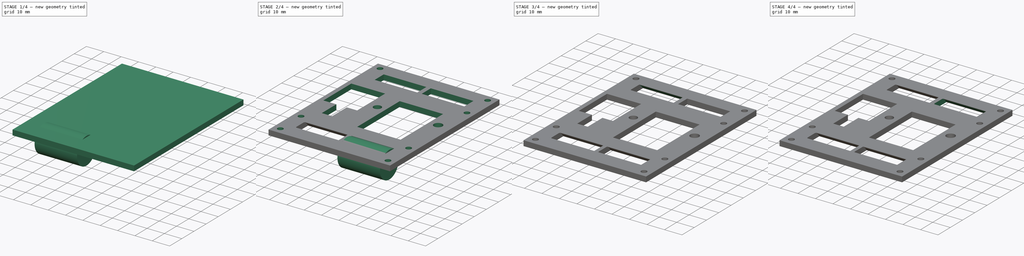
[diagram: build sequence overview — one tinted view per stage of 4, left to right]
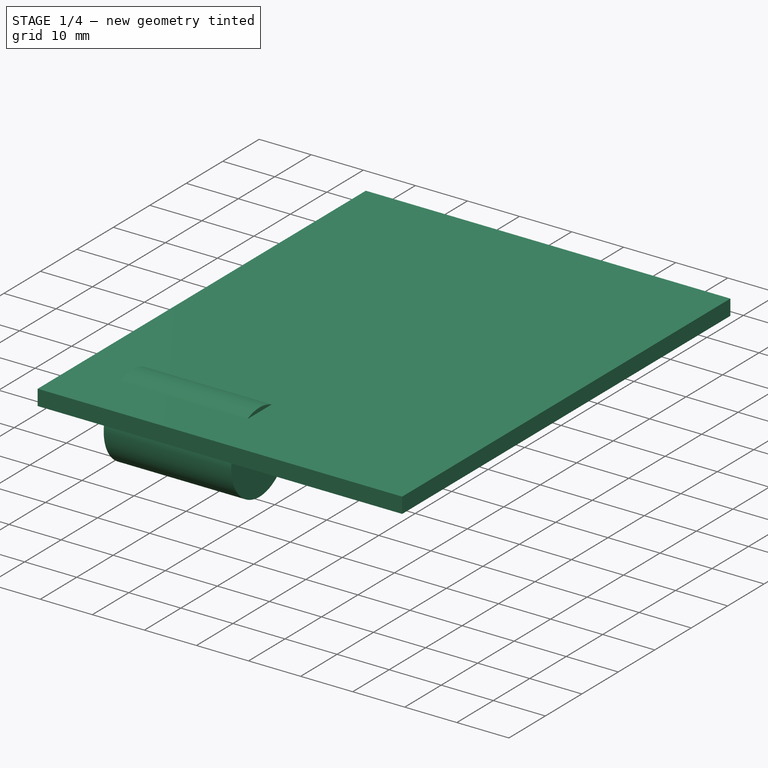
[diagram: stage 1 of 4 — iso view after this stage's code; geometry added in this stage tinted green]
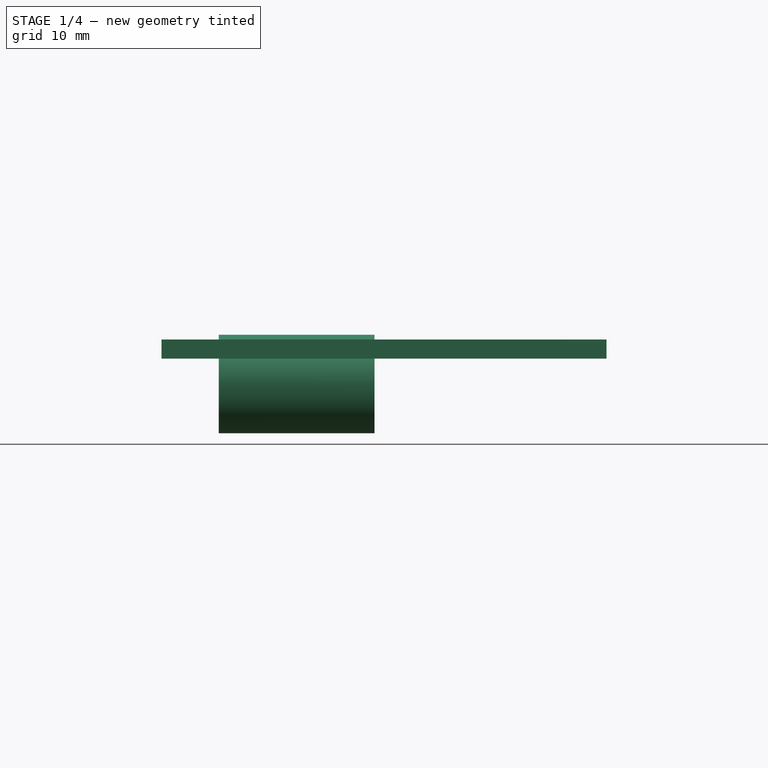
[diagram: stage 1 of 4 — front view after this stage's code; geometry added in this stage tinted green]
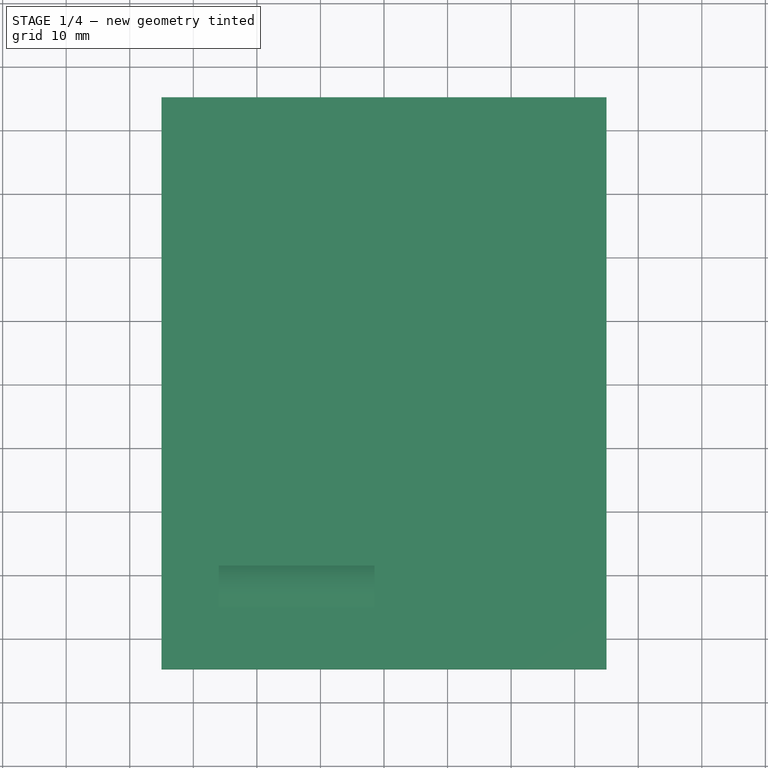
[diagram: stage 1 of 4 — top view after this stage's code; geometry added in this stage tinted green]
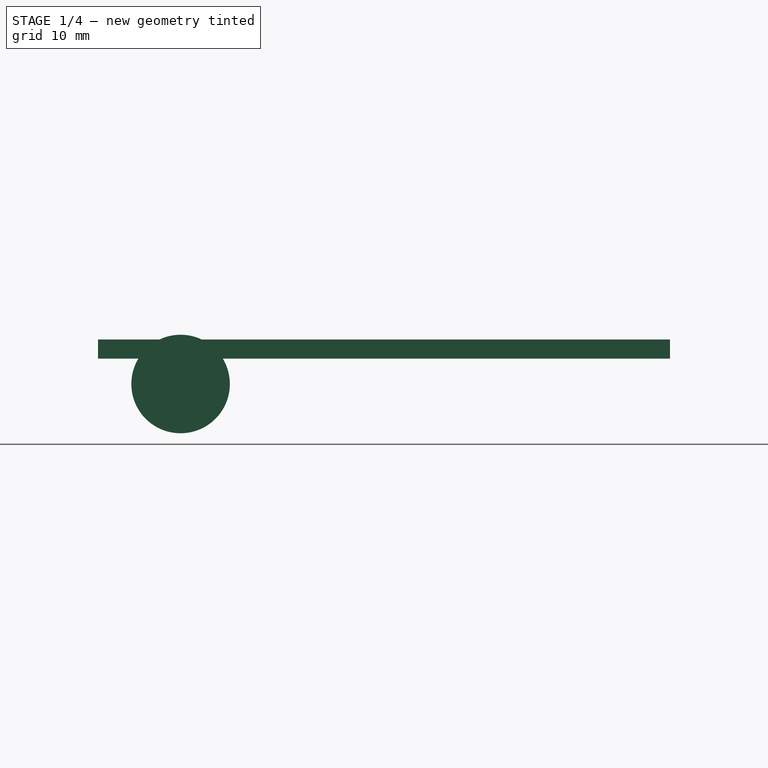
[diagram: stage 1 of 4 — right view after this stage's code; geometry added in this stage tinted green]
FCSTD DOCUMENT  (FreeCAD 0.16R4945 (Git))
Label: carriage-up
License: All rights reserved
LicenseURL: http://es.wikipedia.org/wiki/Todos_los_derechos_reservados
objects: Part::Cylinder×4, Part::Cut×4, Part::Feature×3, Sketcher::SketchObject×2, App::DocumentObjectGroup×1, PartDesign::Pad×1, PartDesign::Pocket×1
note: 17 computed .brp shape members not serialized (recipe doc carries the construction recipe); baked Part::Feature solids carry a one-line shape summary decoded from their .brp

FEATURE [Part::Feature] Part__Feature001  label="smooth-bar-8x330"
  shape: bbox 330 x 8 x 8 mm, 4 faces (baked)
FEATURE [Part::Feature] Part__Feature002  label="smooth-bar-8x331"
  Placement = pos=(0,65,0) rot=(0,0,1;0rad)
  shape: bbox 330 x 8 x 8 mm, 4 faces (baked)
FEATURE [Sketcher::SketchObject] Sketch
  sketch-geometry (4):
    g0: LineSegment StartX=-35 StartY=45 StartZ=0 EndX=35 EndY=45 EndZ=0
    g1: LineSegment StartX=35 StartY=45 StartZ=0 EndX=35 EndY=-45 EndZ=0
    g2: LineSegment StartX=35 StartY=-45 StartZ=0 EndX=-35 EndY=-45 EndZ=0
    g3: LineSegment StartX=-35 StartY=-45 StartZ=0 EndX=-35 EndY=45 EndZ=0
  constraints (11):
    c: Coincident(g0,g1)
    c: Coincident(g1,g2)
    c: Coincident(g2,g3)
    c: Coincident(g3,g0)
    c: Horizontal(g0)
    c: Horizontal(g2)
    c: Vertical(g1)
    c: Vertical(g3)
    c: Symmetric(g0,g1,g-1)
    c: DistanceX(g0) = 70
    c: DistanceY(g1) = -90
FEATURE [App::DocumentObjectGroup] Grupo  label="rodamientos"
FEATURE [PartDesign::Pad] Pad
  Length = 3
  Length2 = 100
  Sketch = -> Sketch
  Type = 0
FEATURE [Part::Cylinder] Cylinder  label="Cilindro"
  Angle = 360
  Height = 24.5
  Placement = pos=(-26,-32,-4) rot=(0,1,0;1.5708rad)
  Radius = 7.75
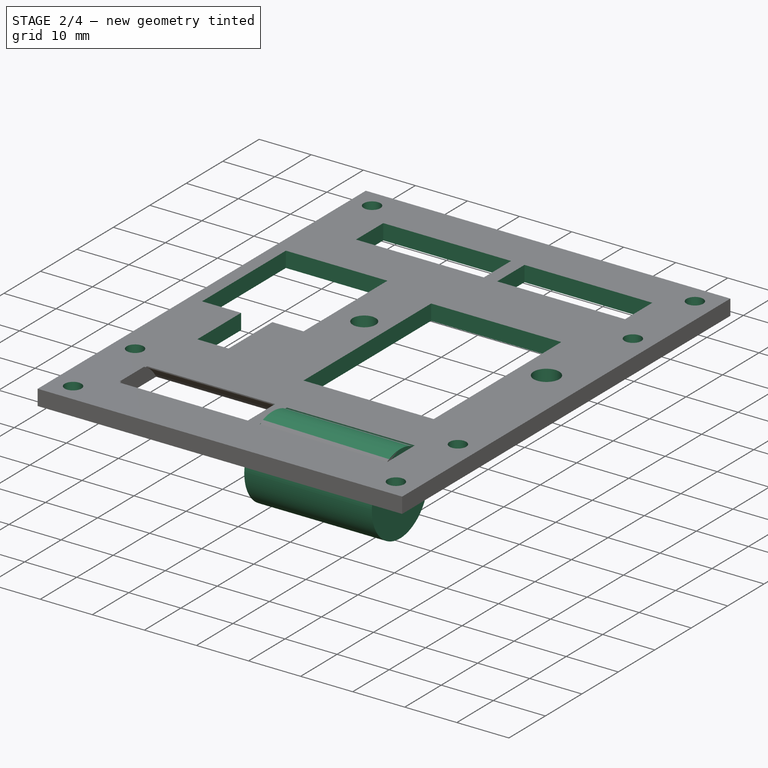
[diagram: stage 2 of 4 — iso view after this stage's code; geometry added in this stage tinted green]
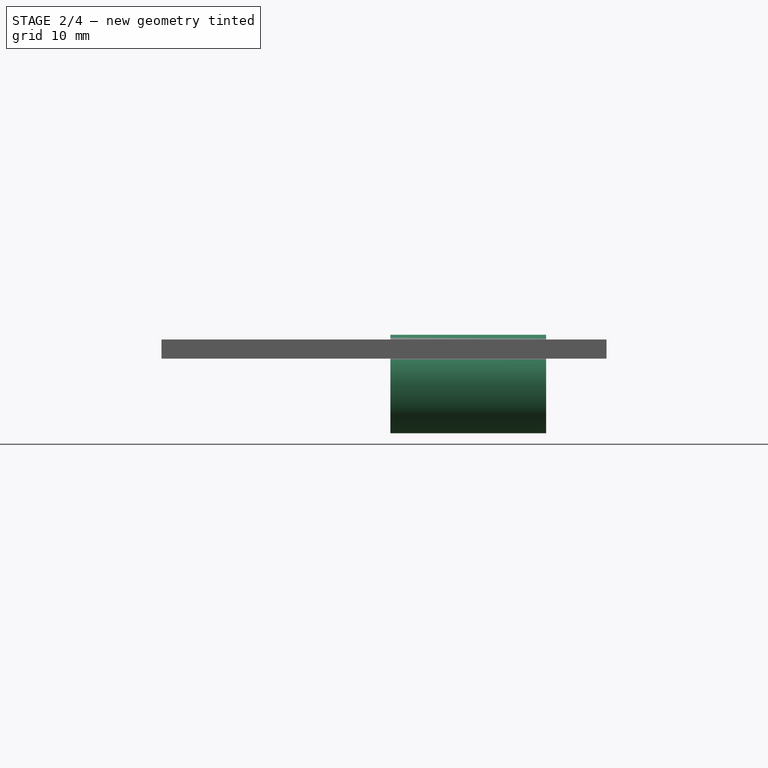
[diagram: stage 2 of 4 — front view after this stage's code; geometry added in this stage tinted green]
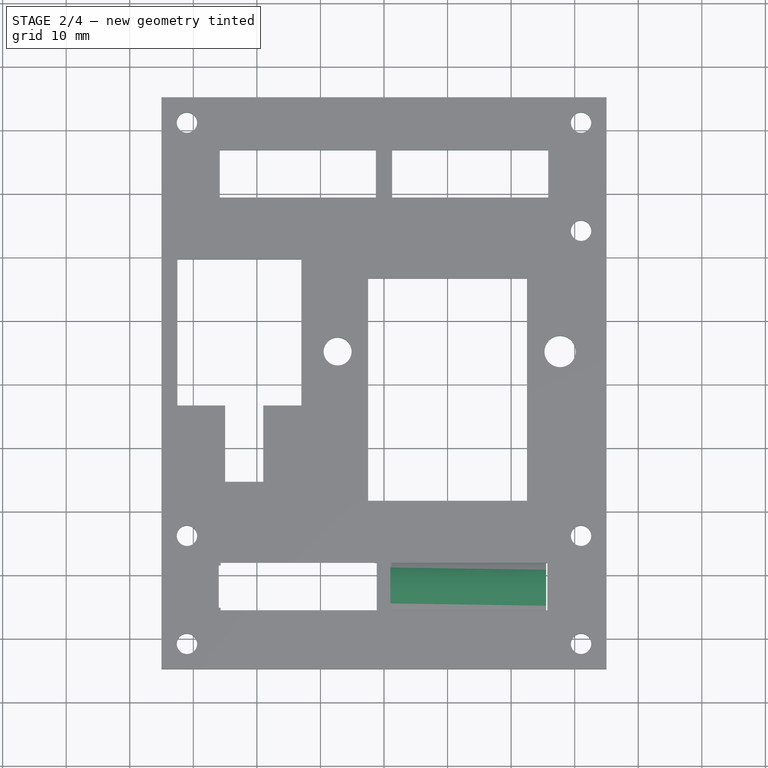
[diagram: stage 2 of 4 — top view after this stage's code; geometry added in this stage tinted green]
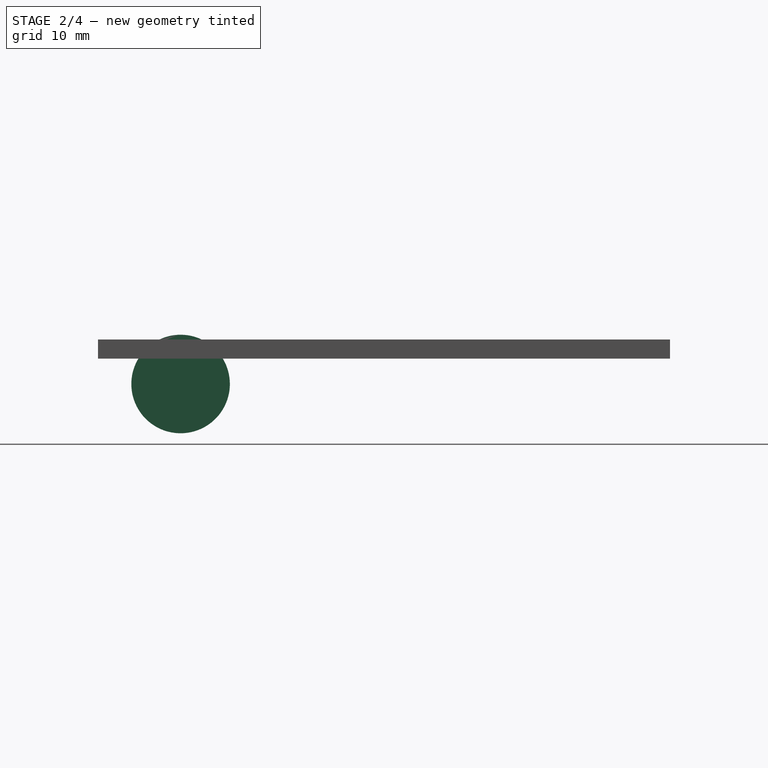
[diagram: stage 2 of 4 — right view after this stage's code; geometry added in this stage tinted green]
FEATURE [Sketcher::SketchObject] Sketch001
  Placement = pos=(0,0,3) rot=(0,0,1;0rad)
  Support = -> Pad [Face6]
  sketch-geometry (37):
    g0: LineSegment StartX=-32.5 StartY=19.5 StartZ=0 EndX=-13 EndY=19.5 EndZ=0
    g1: LineSegment StartX=-13 StartY=19.5 StartZ=0 EndX=-13 EndY=-3.5 EndZ=0
    g2: LineSegment StartX=-13 StartY=-3.5 StartZ=0 EndX=-19 EndY=-3.5 EndZ=0
    g3: LineSegment StartX=-19 StartY=-3.5 StartZ=0 EndX=-19 EndY=-15.5 EndZ=0
    g4: LineSegment StartX=-19 StartY=-15.5 StartZ=0 EndX=-25 EndY=-15.5 EndZ=0
    g5: LineSegment StartX=-25 StartY=-15.5 StartZ=0 EndX=-25 EndY=-3.5 EndZ=0
    g6: LineSegment StartX=-25 StartY=-3.5 StartZ=0 EndX=-32.5 EndY=-3.5 EndZ=0
    g7: LineSegment StartX=-32.5 StartY=-3.5 StartZ=0 EndX=-32.5 EndY=19.5 EndZ=0
    g8: Circle CenterX=-7.3 CenterY=5 CenterZ=0 NormalX=0 NormalY=0 NormalZ=1 Radius=2.2
    g9: Circle CenterX=27.7 CenterY=5 CenterZ=0 NormalX=0 NormalY=0 NormalZ=1 Radius=2.46197
    g10: LineSegment StartX=-2.5 StartY=16.5 StartZ=0 EndX=22.5 EndY=16.5 EndZ=0
    g11: LineSegment StartX=22.5 StartY=16.5 StartZ=0 EndX=22.5 EndY=-18.5 EndZ=0
    g12: LineSegment StartX=22.5 StartY=-18.5 StartZ=0 EndX=-2.5 EndY=-18.5 EndZ=0
    g13: LineSegment StartX=-2.5 StartY=-18.5 StartZ=0 EndX=-2.5 EndY=16.5 EndZ=0
    g14: LineSegment StartX=-25.8394 StartY=36.6871 StartZ=0 EndX=-1.28258 EndY=36.6871 EndZ=0
    g15: LineSegment StartX=-1.28258 StartY=36.6871 StartZ=0 EndX=-1.28258 EndY=29.2169 EndZ=0
    g16: LineSegment StartX=-1.28258 StartY=29.2169 StartZ=0 EndX=-25.8394 EndY=29.2169 EndZ=0
    g17: LineSegment StartX=-25.8394 StartY=29.2169 StartZ=0 EndX=-25.8394 EndY=36.6871 EndZ=0
    g18: LineSegment StartX=1.28258 StartY=36.6871 StartZ=0 EndX=25.8394 EndY=36.6871 EndZ=0
    g19: LineSegment StartX=25.8394 StartY=36.6871 StartZ=0 EndX=25.8394 EndY=29.2169 EndZ=0
    g20: LineSegment StartX=25.8394 StartY=29.2169 StartZ=0 EndX=1.28258 EndY=29.2169 EndZ=0
    g21: LineSegment StartX=1.28258 StartY=29.2169 StartZ=0 EndX=1.28258 EndY=36.6871 EndZ=0
    g22: LineSegment StartX=-25.6951 StartY=-28.2572 StartZ=0 EndX=-1.1383 EndY=-28.2572 EndZ=0
    g23: LineSegment StartX=-1.1383 StartY=-28.2572 StartZ=0 EndX=-1.1383 EndY=-35.7275 EndZ=0
    g24: LineSegment StartX=-1.1383 StartY=-35.7275 StartZ=0 EndX=-25.6951 EndY=-35.7275 EndZ=0
    g25: LineSegment StartX=-25.6951 StartY=-35.7275 StartZ=0 EndX=-25.6951 EndY=-28.2572 EndZ=0
    g26: LineSegment StartX=1.1383 StartY=-28.2572 StartZ=0 EndX=25.6951 EndY=-28.2572 EndZ=0
    g27: LineSegment StartX=25.6951 StartY=-28.2572 StartZ=0 EndX=25.6951 EndY=-35.7275 EndZ=0
    g28: LineSegment StartX=25.6951 StartY=-35.7275 StartZ=0 EndX=1.1383 EndY=-35.7275 EndZ=0
    g29: LineSegment StartX=1.1383 StartY=-35.7275 StartZ=0 EndX=1.1383 EndY=-28.2572 EndZ=0
    g30: Circle CenterX=-31 CenterY=41 CenterZ=0 NormalX=0 NormalY=0 NormalZ=1 Radius=1.6
    g31: Circle CenterX=31 CenterY=41 CenterZ=0 NormalX=0 NormalY=0 NormalZ=1 Radius=1.6
    g32: Circle CenterX=31 CenterY=24 CenterZ=0 NormalX=0 NormalY=0 NormalZ=1 Radius=1.6
    g33: Circle CenterX=-31 CenterY=-24 CenterZ=0 NormalX=0 NormalY=0 NormalZ=1 Radius=1.6
    g34: Circle CenterX=-31 CenterY=-41 CenterZ=0 NormalX=0 NormalY=0 NormalZ=1 Radius=1.6
    g35: Circle CenterX=31 CenterY=-24 CenterZ=0 NormalX=0 NormalY=0 NormalZ=1 Radius=1.6
    g36: Circle CenterX=31 CenterY=-41 CenterZ=0 NormalX=0 NormalY=0 NormalZ=1 Radius=1.6
  constraints (90):
    c: Horizontal(g0)
    c: Coincident(g0,g1)
    c: Vertical(g1)
    c: Coincident(g1,g2)
    c: Coincident(g2,g3)
    c: Vertical(g3)
    c: Coincident(g3,g4)
    c: Horizontal(g4)
    c: Coincident(g4,g5)
    c: Vertical(g5)
    c: Coincident(g5,g6)
    c: Coincident(g6,g7)
    c: Coincident(g7,g0)
    c: Horizontal(g2)
    c: DistanceX(g2) = -6
    c: DistanceY(g3) = -12
    c: DistanceY(g1) = -23
    c: Equal(g3,g5)
    c: Horizontal(g6)
    c: DistanceX(g4) = -6
    c: Radius(g8) = 2.2
    c: Distance(g8,g9) = 35
    c: Coincident(g10,g11)
    c: Coincident(g11,g12)
    c: Coincident(g12,g13)
    c: Coincident(g13,g10)
    c: Horizontal(g10)
    c: Horizontal(g12)
    c: Vertical(g11)
    c: Vertical(g13)
    c: DistanceX(g10) = 25
    c: DistanceY(g11) = -35
    c: DistanceX(g-2,g8) = -7.3
    c: DistanceY(g-1,g9) = 5
    c: DistanceY(g-1,g8) = 5
    c: DistanceY(g-1,g12) = -18.5
    c: DistanceX(g-2,g10) = -2.5
    c: Coincident(g14,g15)
    c: Coincident(g15,g16)
    c: Coincident(g16,g17)
    c: Coincident(g17,g14)
    c: Horizontal(g14)
    c: Horizontal(g16)
    c: Vertical(g15)
    c: Vertical(g17)
    c: Coincident(g18,g19)
    c: Coincident(g19,g20)
    c: Coincident(g20,g21)
    c: Coincident(g21,g18)
    c: Horizontal(g18)
    c: Horizontal(g20)
    c: Vertical(g19)
    c: Vertical(g21)
    c: Coincident(g22,g23)
    c: Coincident(g23,g24)
    c: Coincident(g24,g25)
    c: Coincident(g25,g22)
    c: Horizontal(g22)
    c: Horizontal(g24)
    c: Vertical(g23)
    c: Vertical(g25)
    c: Coincident(g26,g27)
    c: Coincident(g27,g28)
    c: Coincident(g28,g29)
    c: Coincident(g29,g26)
    c: Horizontal(g26)
    c: Horizontal(g28)
    c: Vertical(g27)
    c: Vertical(g29)
    c: Radius(g30) = 1.6
    c: Equal(g32,g31)
    c: Equal(g31,g33)
    c: Equal(g33,g34)
    c: Equal(g34,g36)
    c: Equal(g36,g35)
    c: Symmetric(g34,g31,g-1)
    c: Symmetric(g30,g36,g-1)
    c: Symmetric(g32,g33,g-1)
    c: DistanceY(g-1,g3) = -15.5
    c: Equal(g14,g18)
    c: Equal(g18,g22)
    c: Equal(g22,g26)
    c: Equal(g29,g19)
    c: Equal(g19,g15)
    c: Equal(g15,g23)
    c: Symmetric(g14,g18,g-2)
    c: Symmetric(g22,g26,g-2)
    c: Distance(g34,g36) = 62
    c: Distance(g33,g34) = 17
    c: Distance(g35,g32) = 48
FEATURE [PartDesign::Pocket] Pocket
  Length = 5
  Sketch = -> Sketch001
  Type = 1
FEATURE [Part::Cylinder] Cylinder001  label="Cilindro001"
  Angle = 360
  Height = 24.5
  Placement = pos=(1,-32,-4) rot=(0,1,0;1.5708rad)
  Radius = 7.75
FEATURE [Part::Cut] Cut
  Base = -> Pocket
  Tool = -> Cylinder
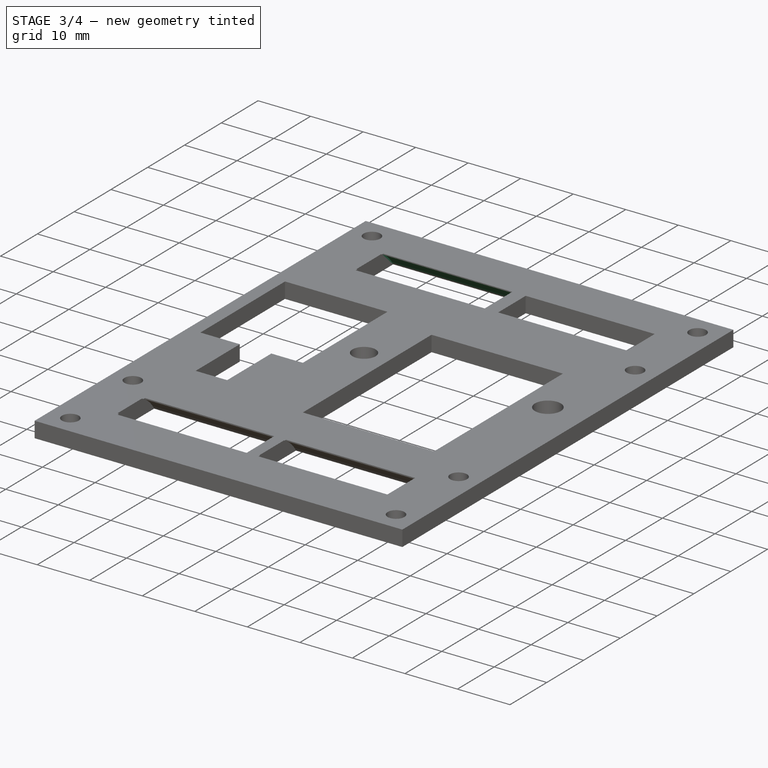
[diagram: stage 3 of 4 — iso view after this stage's code; geometry added in this stage tinted green]
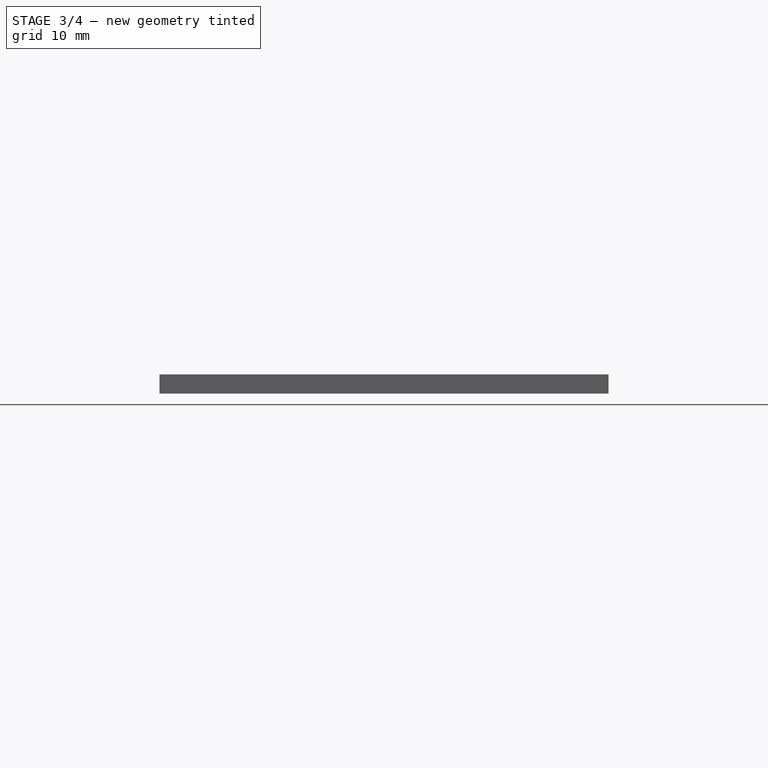
[diagram: stage 3 of 4 — front view after this stage's code; geometry added in this stage tinted green]
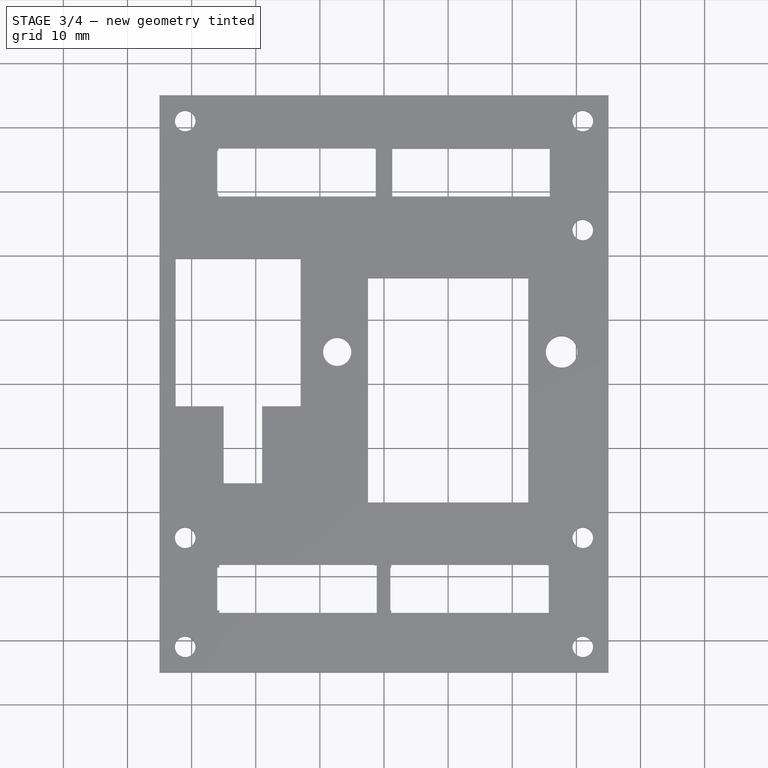
[diagram: stage 3 of 4 — top view after this stage's code; geometry added in this stage tinted green]
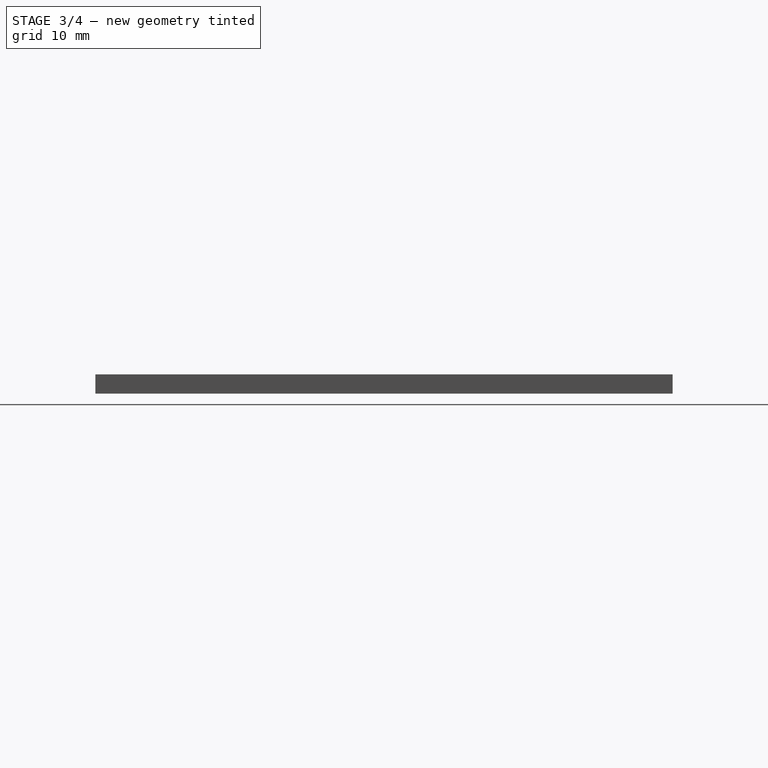
[diagram: stage 3 of 4 — right view after this stage's code; geometry added in this stage tinted green]
FEATURE [Part::Cylinder] Cylinder002  label="Cilindro002"
  Angle = 360
  Height = 24.5
  Placement = pos=(-26,33,-4) rot=(0,1,0;1.5708rad)
  Radius = 7.75
FEATURE [Part::Cut] Cut001
  Base = -> Cut
  Tool = -> Cylinder001
FEATURE [Part::Cut] Cut002
  Base = -> Cut001
  Tool = -> Cylinder002
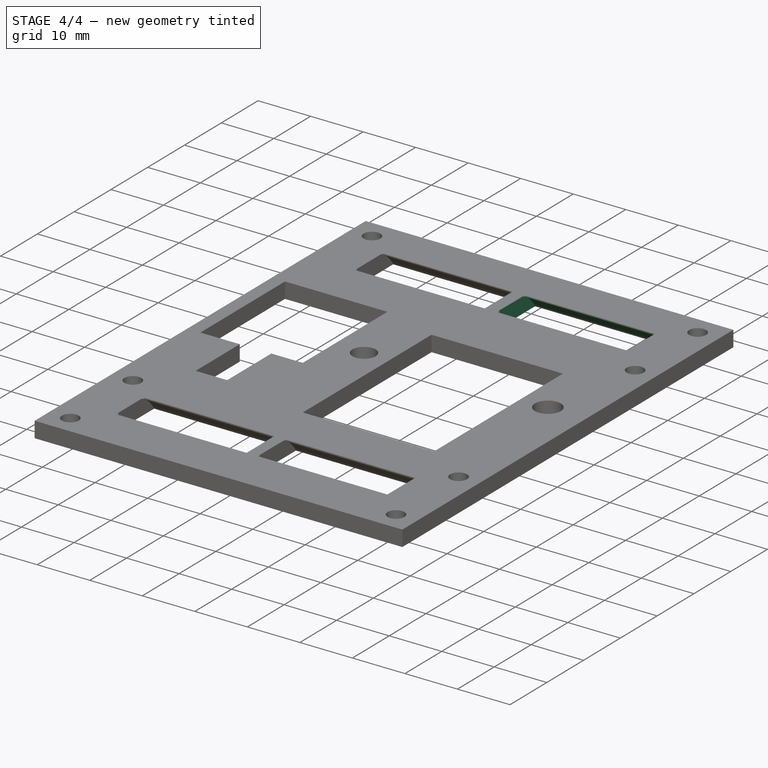
[diagram: stage 4 of 4 — iso view after this stage's code; geometry added in this stage tinted green]
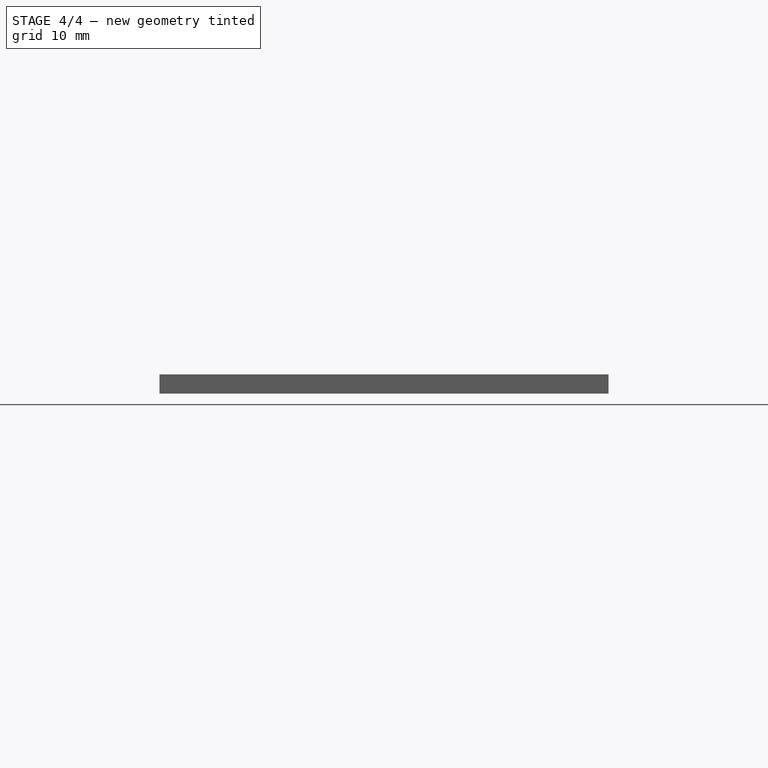
[diagram: stage 4 of 4 — front view after this stage's code; geometry added in this stage tinted green]
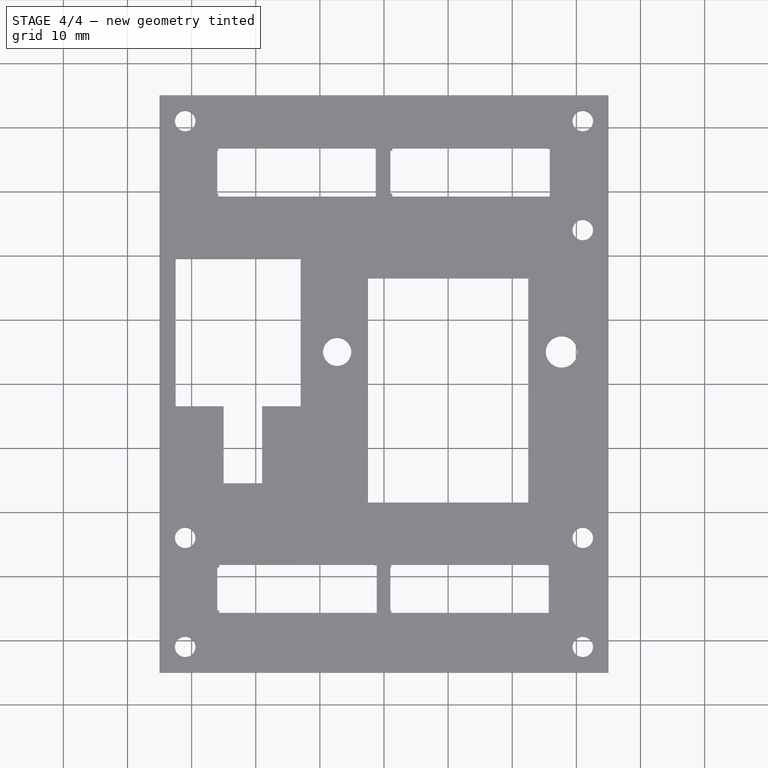
[diagram: stage 4 of 4 — top view after this stage's code; geometry added in this stage tinted green]
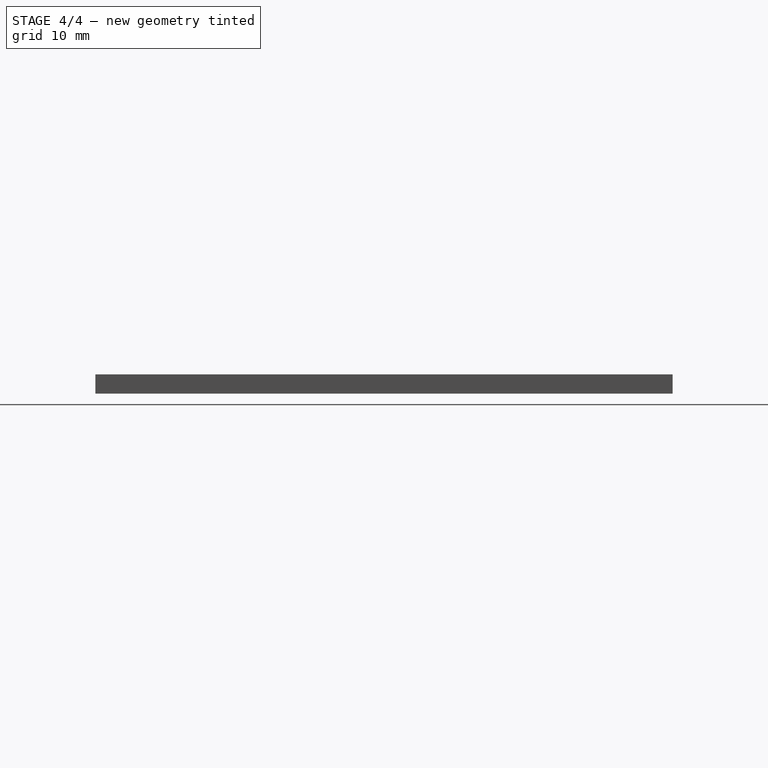
[diagram: stage 4 of 4 — right view after this stage's code; geometry added in this stage tinted green]
FEATURE [Part::Cylinder] Cylinder003  label="Cilindro003"
  Angle = 360
  Height = 24.5
  Placement = pos=(1,33,-4) rot=(0,1,0;1.5708rad)
  Radius = 7.75
FEATURE [Part::Cut] Cut003
  Base = -> Cut002
  Tool = -> Cylinder003
FEATURE [Part::Feature] Cut003001  label="Carriage-up-final"
  shape: bbox 70 x 90 x 3 mm, 67 faces (baked)
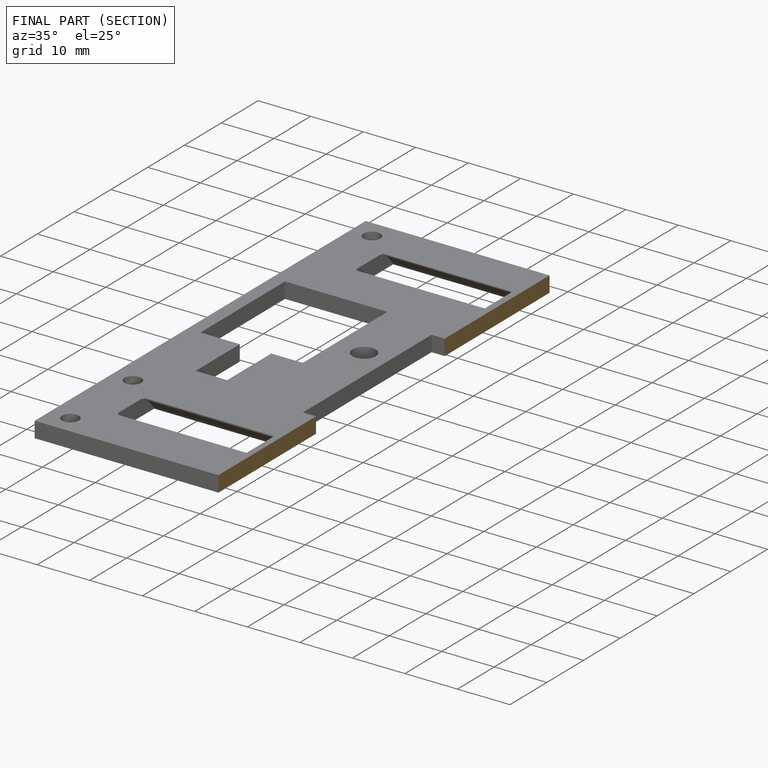
[diagram: finished part — half-section view (interior)]
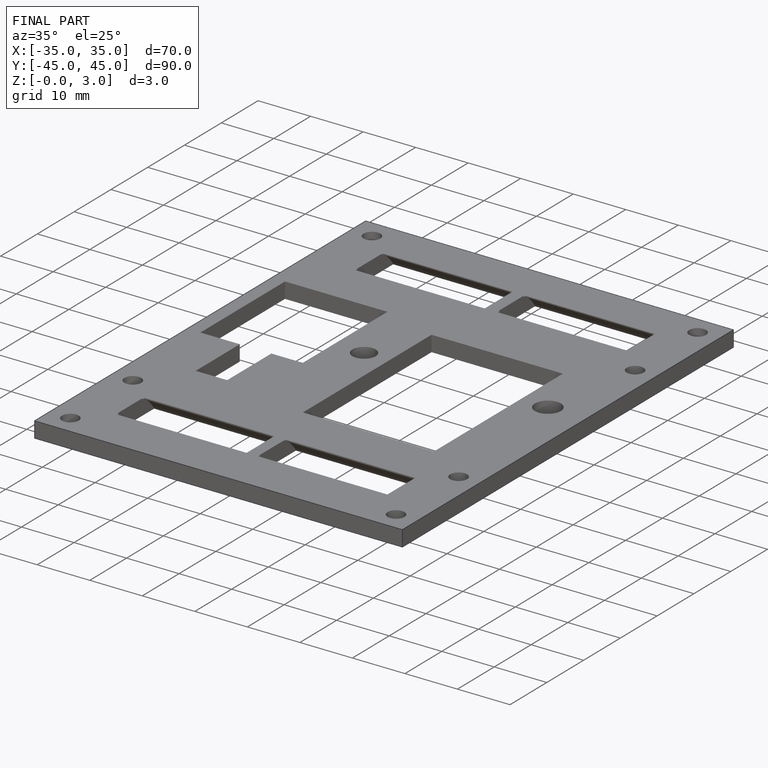
[diagram: finished part — iso view with bounding-box wireframe]
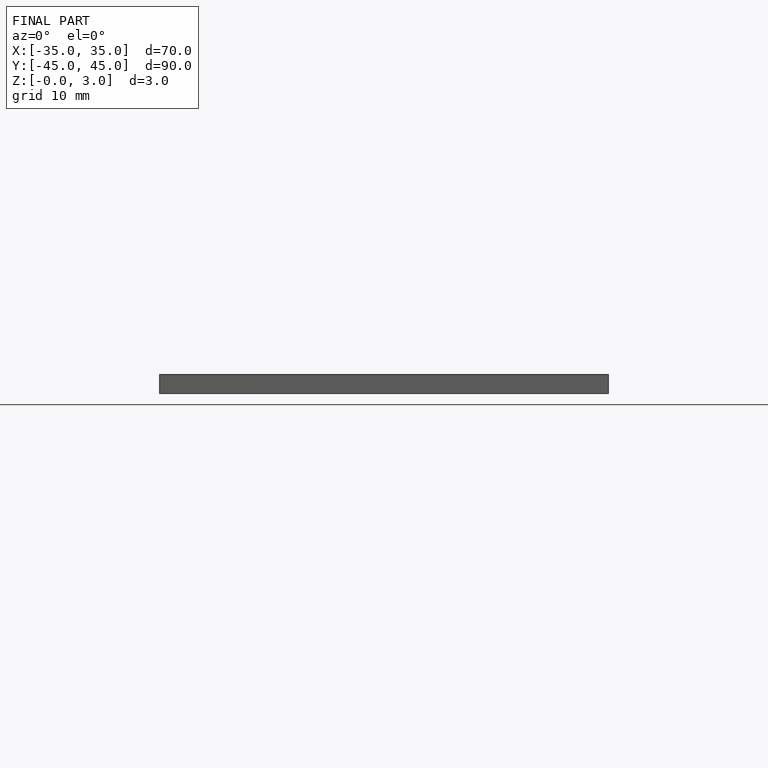
[diagram: finished part — front view with bounding-box wireframe]
